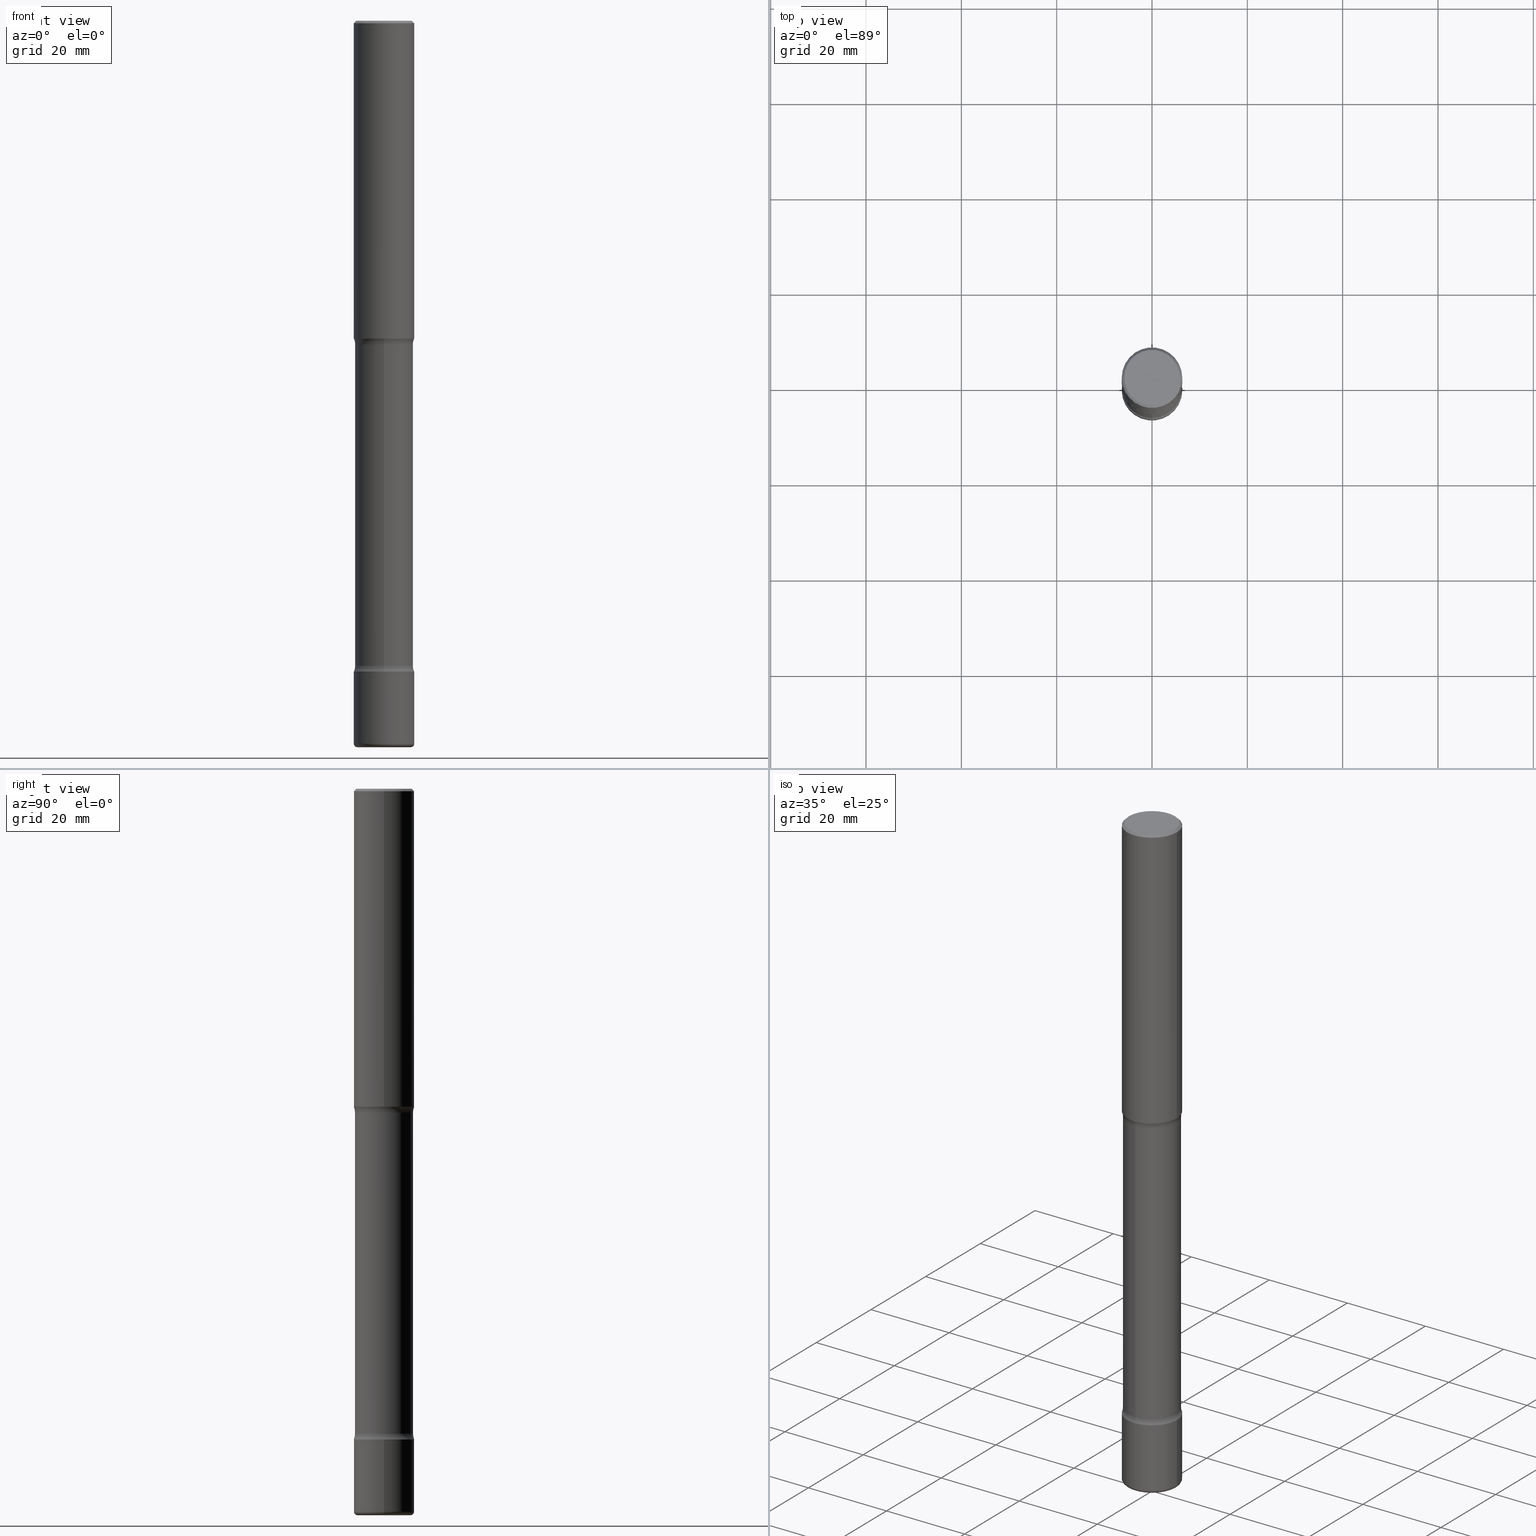
[diagram: canonical four-view strip — front | top / right | iso, engineering-drawing reading convention]
A machine part, canonical four-view strip (front | top / right | iso — engineering-drawing reading convention). The complete STEP part file that produces these views, byte-faithful:
ISO-10303-21;
HEADER;
FILE_DESCRIPTION (( 'STEP AP203' ),
    '1' );
FILE_NAME ('33553.STEP',
    '2024-03-01T22:48:00',
    ( '' ),
    ( '' ),
    'SwSTEP 2.0',
    'SolidWorks 2023',
    '' );
FILE_SCHEMA (( 'CONFIG_CONTROL_DESIGN' ));
ENDSEC;

DATA;
#1 = PERSON_AND_ORGANIZATION_ROLE ( 'creator' ) ;
#2 = CARTESIAN_POINT ( 'NONE',  ( 6.419355616235984688E-29, -9.165138514463258190E-15, -2.625000000000000444 ) ) ;
#3 = DIRECTION ( 'NONE',  ( -1.000000000000000000, 6.982962677686265922E-15, -4.876176775795935793E-29 ) ) ;
#4 = CARTESIAN_POINT ( 'NONE',  ( -0.2500000000000001110, 1.675911042644704760E-15, -0.02000000000000000042 ) ) ;
#5 = CARTESIAN_POINT ( 'NONE',  ( 6.419355616235984688E-29, -9.165138514463258190E-15, -2.625000000000000444 ) ) ;
#6 = DATE_TIME_ROLE ( 'classification_date' ) ;
#7 = VERTEX_POINT ( 'NONE', #434 ) ;
#8 = AXIS2_PLACEMENT_3D ( 'NONE', #16, #232, #534 ) ;
#9 = LINE ( 'NONE', #12, #491 ) ;
#10 = VERTEX_POINT ( 'NONE', #437 ) ;
#11 = CALENDAR_DATE ( 2024, 1, 3 ) ;
#12 = CARTESIAN_POINT ( 'NONE',  ( -0.2500000000000001110, 1.675911042644704760E-15, -0.02000000000000000042 ) ) ;
#13 = VERTEX_POINT ( 'NONE', #4 ) ;
#14 = MANIFOLD_SOLID_BREP ( 'Body-Move/Copy2[4]', #48 ) ;
#15 = EDGE_CURVE ( 'NONE', #108, #546, #316, .T. ) ;
#16 = CARTESIAN_POINT ( 'NONE',  ( 1.314439483324511145E-28, -1.876671219628190963E-14, -5.375000000000000888 ) ) ;
#17 = ORIENTED_EDGE ( 'NONE', *, *, #213, .F. ) ;
#18 = CLOSED_SHELL ( 'NONE', ( #496, #78, #240, #500, #498, #77 ) ) ;
#19 = DIRECTION ( 'NONE',  ( 7.105427357601001859E-15, 1.000000000000000000, -3.491481338843145583E-15 ) ) ;
#20 = DIRECTION ( 'NONE',  ( -2.445468806185136597E-29, 3.491481338843145583E-15, 1.000000000000000000 ) ) ;
#21 = CC_DESIGN_PERSON_AND_ORGANIZATION_ASSIGNMENT ( #339, #519, ( #357 ) ) ;
#22 = AXIS2_PLACEMENT_3D ( 'NONE', #217, #129, #422 ) ;
#23 = ORIENTED_EDGE ( 'NONE', *, *, #538, .T. ) ;
#24 = CYLINDRICAL_SURFACE ( 'NONE', #426, 0.2500000000000002220 ) ;
#25 = EDGE_LOOP ( 'NONE', ( #445, #485, #103, #476 ) ) ;
#26 = CARTESIAN_POINT ( 'NONE',  ( 5.817801196841161723E-29, -1.036921037236620195E-14, -2.673989794855665458 ) ) ;
#27 = ADVANCED_FACE ( 'NONE', ( #57 ), #54, .F. ) ;
#28 = FACE_OUTER_BOUND ( 'NONE', #102, .T. ) ;
#29 = AXIS2_PLACEMENT_3D ( 'NONE', #253, #31, #211 ) ;
#30 = CYLINDRICAL_SURFACE ( 'NONE', #492, 0.2500000000000002220 ) ;
#31 = DIRECTION ( 'NONE',  ( -2.445468806185136597E-29, 3.491481338843145583E-15, 1.000000000000000000 ) ) ;
#32 = AXIS2_PLACEMENT_3D ( 'NONE', #335, #517, #472 ) ;
#33 = DIRECTION ( 'NONE',  ( 1.000000000000000000, -6.982962677686265922E-15, 4.876225828469305518E-29 ) ) ;
#34 = CARTESIAN_POINT ( 'NONE',  ( 1.467281283711081958E-28, -2.094888803305887271E-14, -6.000000000000000888 ) ) ;
#35 = DIRECTION ( 'NONE',  ( -2.445468806185136597E-29, 3.491481338843145583E-15, 1.000000000000000000 ) ) ;
#36 = EDGE_CURVE ( 'NONE', #135, #229, #136, .T. ) ;
#37 = CARTESIAN_POINT ( 'NONE',  ( 5.684914501872502754E-29, -1.021689999202400017E-14, -2.625000000000000444 ) ) ;
#38 = AXIS2_PLACEMENT_3D ( 'NONE', #371, #550, #72 ) ;
#39 = CARTESIAN_POINT ( 'NONE',  ( 1.459944877292526719E-28, -2.084414359289358249E-14, -5.970000000000000639 ) ) ;
#40 = AXIS2_PLACEMENT_3D ( 'NONE', #547, #289, #33 ) ;
#41 = DIRECTION ( 'NONE',  ( -2.445468806185136597E-29, 3.491481338843145583E-15, 1.000000000000000000 ) ) ;
#42 = PRODUCT_DEFINITION_FORMATION_WITH_SPECIFIED_SOURCE ( 'ANY', '', #357, .NOT_KNOWN. ) ;
#43 = ADVANCED_FACE ( 'NONE', ( #231 ), #125, .F. ) ;
#44 = CARTESIAN_POINT ( 'NONE',  ( 1.459944877292526719E-28, -2.084414359289358249E-14, -5.970000000000000639 ) ) ;
#45 = ORIENTED_EDGE ( 'NONE', *, *, #440, .F. ) ;
#46 = DIRECTION ( 'NONE',  ( 1.000000000000000000, -6.860497997771530774E-15, 4.845482648085820023E-29 ) ) ;
#47 = VERTEX_POINT ( 'NONE', #191 ) ;
#48 = CLOSED_SHELL ( 'NONE', ( #312, #474, #264, #43, #325, #366, #429, #84 ) ) ;
#49 = PERSON_AND_ORGANIZATION_ROLE ( 'creator' ) ;
#50 = ORIENTED_EDGE ( 'NONE', *, *, #177, .T. ) ;
#51 = UNCERTAINTY_MEASURE_WITH_UNIT (LENGTH_MEASURE( 1.000000000000000082E-05 ), #86, 'distance_accuracy_value', 'NONE');
#52 = ADVANCED_BREP_SHAPE_REPRESENTATION ( '33553', ( #557, #365, #14, #32 ), #374 ) ;
#53 = LOCAL_TIME ( 17, 48, 0.000000000000000000, #96 ) ;
#54 = PLANE ( 'NONE',  #172 ) ;
#55 = EDGE_CURVE ( 'NONE', #409, #13, #9, .T. ) ;
#56 = PERSON_AND_ORGANIZATION ( #548, #446 ) ;
#57 = FACE_OUTER_BOUND ( 'NONE', #503, .T. ) ;
#58 = CIRCLE ( 'NONE', #131, 0.2500000000000012768 ) ;
#59 = DIRECTION ( 'NONE',  ( 6.982962677686265922E-15, 1.000000000000000000, -3.109022619730148535E-15 ) ) ;
#60 = ORIENTED_EDGE ( 'NONE', *, *, #115, .T. ) ;
#61 = APPROVAL_PERSON_ORGANIZATION ( #387, #406, #142 ) ;
#62 = CARTESIAN_POINT ( 'NONE',  ( 4.890937612370273159E-31, -6.982962677686291609E-17, -0.02000000000000000042 ) ) ;
#63 = ORIENTED_EDGE ( 'NONE', *, *, #222, .T. ) ;
#64 = DIRECTION ( 'NONE',  ( -1.000000000000000000, 6.982962677686265922E-15, -4.883557194083112340E-29 ) ) ;
#65 = CYLINDRICAL_SURFACE ( 'NONE', #254, 0.2500000000000002220 ) ;
#66 = EDGE_LOOP ( 'NONE', ( #193, #400, #196, #499 ) ) ;
#67 = CIRCLE ( 'NONE', #386, 0.2500000000000002220 ) ;
#68 = FACE_OUTER_BOUND ( 'NONE', #356, .T. ) ;
#69 = CARTESIAN_POINT ( 'NONE',  ( 1.302459181810417411E-28, -1.859566524174960707E-14, -5.326010205144336318 ) ) ;
#70 = CIRCLE ( 'NONE', #272, 0.1250000000000001110 ) ;
#71 = ORIENTED_EDGE ( 'NONE', *, *, #558, .T. ) ;
#72 = DIRECTION ( 'NONE',  ( 1.000000000000000000, -6.982962677686265922E-15, 4.883557194083112340E-29 ) ) ;
#73 = DIRECTION ( 'NONE',  ( -2.445468806185136877E-29, 3.491481338843145188E-15, 1.000000000000000000 ) ) ;
#74 = DIRECTION ( 'NONE',  ( 2.438088387897960049E-29, -3.491481338843145188E-15, -1.000000000000000000 ) ) ;
#75 = CARTESIAN_POINT ( 'NONE',  ( -0.2200000000000003897, -1.922674038393999147E-14, -6.000000000000000888 ) ) ;
#76 = DIRECTION ( 'NONE',  ( -1.000000000000000000, 6.982962677686265922E-15, -4.876176775795935793E-29 ) ) ;
#77 = ADVANCED_FACE ( 'NONE', ( #332 ), #248, .F. ) ;
#78 = ADVANCED_FACE ( 'NONE', ( #292 ), #414, .T. ) ;
#79 = CARTESIAN_POINT ( 'NONE',  ( 5.684914501872502754E-29, -1.021689999202400017E-14, -2.625000000000000444 ) ) ;
#80 = CIRCLE ( 'NONE', #505, 0.1250000000000001110 ) ;
#81 = AXIS2_PLACEMENT_3D ( 'NONE', #323, #287, #160 ) ;
#82 = CARTESIAN_POINT ( 'NONE',  ( 5.817801196841161723E-29, -1.036921037236620195E-14, -2.673989794855665458 ) ) ;
#83 = APPROVAL ( #433, 'UNSPECIFIED' ) ;
#84 = ADVANCED_FACE ( 'NONE', ( #28 ), #123, .T. ) ;
#85 = LOCAL_TIME ( 17, 48, 0.000000000000000000, #307 ) ;
#86 =( CONVERSION_BASED_UNIT ( 'INCH', #88 ) LENGTH_UNIT ( ) NAMED_UNIT ( #420 ) );
#87 = CARTESIAN_POINT ( 'NONE',  ( -0.2500000000000002220, 1.776356839400252042E-15, -1.229733772563727566E-29 ) ) ;
#88 = LENGTH_MEASURE_WITH_UNIT ( LENGTH_MEASURE( 0.02539999999999999897 ), #382 );
#89 = CIRCLE ( 'NONE', #302, 0.1250000000000001110 ) ;
#90 = DIRECTION ( 'NONE',  ( -2.445468806185136597E-29, 3.491481338843145583E-15, 1.000000000000000000 ) ) ;
#91 =( NAMED_UNIT ( * ) PLANE_ANGLE_UNIT ( ) SI_UNIT ( $, .RADIAN. ) );
#92 = CARTESIAN_POINT ( 'NONE',  ( 1.675911042644855432E-15, 0.2399999999999797573, -6.000000000000001776 ) ) ;
#93 = PERSON_AND_ORGANIZATION ( #548, #446 ) ;
#94 = ORIENTED_EDGE ( 'NONE', *, *, #416, .F. ) ;
#95 = EDGE_LOOP ( 'NONE', ( #170, #273, #542, #353 ) ) ;
#96 = COORDINATED_UNIVERSAL_TIME_OFFSET ( 5, 0, .BEHIND. ) ;
#97 = ORIENTED_EDGE ( 'NONE', *, *, #554, .T. ) ;
#98 = AXIS2_PLACEMENT_3D ( 'NONE', #34, #513, #128 ) ;
#99 = ADVANCED_FACE ( 'NONE', ( #296 ), #162, .F. ) ;
#100 = EDGE_CURVE ( 'NONE', #229, #13, #478, .T. ) ;
#101 = DATE_AND_TIME ( #484, #305 ) ;
#102 = EDGE_LOOP ( 'NONE', ( #106, #226, #224, #94 ) ) ;
#103 = ORIENTED_EDGE ( 'NONE', *, *, #346, .T. ) ;
#104 = EDGE_LOOP ( 'NONE', ( #405, #349 ) ) ;
#105 = PLANE ( 'NONE',  #359 ) ;
#106 = ORIENTED_EDGE ( 'NONE', *, *, #531, .F. ) ;
#107 = CYLINDRICAL_SURFACE ( 'NONE', #140, 0.2400000000000004352 ) ;
#108 = VERTEX_POINT ( 'NONE', #375 ) ;
#109 = AXIS2_PLACEMENT_3D ( 'NONE', #333, #428, #495 ) ;
#110 = DIRECTION ( 'NONE',  ( 6.982962677686265922E-15, 1.000000000000000000, -4.553079989440430414E-15 ) ) ;
#111 = ORIENTED_EDGE ( 'NONE', *, *, #161, .T. ) ;
#112 = CARTESIAN_POINT ( 'NONE',  ( 1.314439483324511145E-28, -1.876671219628190963E-14, -5.375000000000000888 ) ) ;
#113 = DIRECTION ( 'NONE',  ( 1.000000000000000000, -6.982962677686266711E-15, 4.876176775795935232E-29 ) ) ;
#114 = ORIENTED_EDGE ( 'NONE', *, *, #100, .T. ) ;
#115 = EDGE_CURVE ( 'NONE', #143, #108, #506, .T. ) ;
#116 = DIRECTION ( 'NONE',  ( 2.712538302317311845E-29, -3.109022619730148535E-15, -1.000000000000000000 ) ) ;
#117 = APPROVAL ( #525, 'UNSPECIFIED' ) ;
#118 = ORIENTED_EDGE ( 'NONE', *, *, #522, .F. ) ;
#119 = AXIS2_PLACEMENT_3D ( 'NONE', #185, #64, #239 ) ;
#120 = CARTESIAN_POINT ( 'NONE',  ( 1.314439483324511145E-28, -1.876671219628190963E-14, -5.375000000000000888 ) ) ;
#121 = LINE ( 'NONE', #87, #167 ) ;
#122 = DIRECTION ( 'NONE',  ( -2.445468806185136597E-29, 3.491481338843145583E-15, 1.000000000000000000 ) ) ;
#123 = CYLINDRICAL_SURFACE ( 'NONE', #207, 0.2400000000000004352 ) ;
#124 = CARTESIAN_POINT ( 'NONE',  ( 1.302459181810417411E-28, -1.859566524174960707E-14, -5.326010205144336318 ) ) ;
#125 = TOROIDAL_SURFACE ( 'NONE', #527, 0.3650000000000008793, 0.1250000000000001110 ) ;
#126 = CARTESIAN_POINT ( 'NONE',  ( -0.2500000000000002220, 1.776356839400252042E-15, -1.229733772563727566E-29 ) ) ;
#127 = DIRECTION ( 'NONE',  ( 1.000000000000000000, -6.982962677686273810E-15, 0.000000000000000000 ) ) ;
#128 = DIRECTION ( 'NONE',  ( 1.000000000000000000, -6.982962677686267499E-15, 0.000000000000000000 ) ) ;
#129 = DIRECTION ( 'NONE',  ( -2.445468806185136597E-29, 3.491481338843145583E-15, 1.000000000000000000 ) ) ;
#130 = CC_DESIGN_PERSON_AND_ORGANIZATION_ASSIGNMENT ( #310, #348, ( #354 ) ) ;
#131 = AXIS2_PLACEMENT_3D ( 'NONE', #79, #504, #364 ) ;
#132 = LINE ( 'NONE', #552, #541 ) ;
#133 = TOROIDAL_SURFACE ( 'NONE', #174, 0.3650000000000001577, 0.1250000000000000833 ) ;
#134 = APPLICATION_PROTOCOL_DEFINITION ( 'international standard', 'config_control_design', 1994, #411 ) ;
#135 = VERTEX_POINT ( 'NONE', #165 ) ;
#136 = LINE ( 'NONE', #388, #331 ) ;
#137 = CARTESIAN_POINT ( 'NONE',  ( 5.823793909594310239E-29, -1.036062846661966631E-14, -2.673989794855665458 ) ) ;
#138 = EDGE_CURVE ( 'NONE', #457, #235, #347, .T. ) ;
#139 = VERTEX_POINT ( 'NONE', #467 ) ;
#140 = AXIS2_PLACEMENT_3D ( 'NONE', #280, #192, #110 ) ;
#141 = CIRCLE ( 'NONE', #151, 0.2399999999999999911 ) ;
#142 = APPROVAL_ROLE ( '' ) ;
#143 = VERTEX_POINT ( 'NONE', #514 ) ;
#144 = COORDINATED_UNIVERSAL_TIME_OFFSET ( 5, 0, .BEHIND. ) ;
#145 = DIRECTION ( 'NONE',  ( -2.438088387897960049E-29, 3.491481338843145188E-15, 1.000000000000000000 ) ) ;
#146 = ORIENTED_EDGE ( 'NONE', *, *, #36, .T. ) ;
#147 = APPROVAL_ROLE ( '' ) ;
#148 = CIRCLE ( 'NONE', #119, 0.1250000000000001110 ) ;
#149 = ORIENTED_EDGE ( 'NONE', *, *, #454, .F. ) ;
#150 = TOROIDAL_SURFACE ( 'NONE', #423, 0.3650000000000001577, 0.1250000000000000833 ) ;
#151 = AXIS2_PLACEMENT_3D ( 'NONE', #376, #471, #334 ) ;
#152 = CARTESIAN_POINT ( 'NONE',  ( 2.548781377355618064E-15, 0.3649999999999815614, -5.326010205144338094 ) ) ;
#153 = ADVANCED_FACE ( 'NONE', ( #256 ), #410, .T. ) ;
#154 = ORIENTED_EDGE ( 'NONE', *, *, #15, .F. ) ;
#155 = DIRECTION ( 'NONE',  ( -1.000000000000000000, 6.982962677686267499E-15, 0.000000000000000000 ) ) ;
#156 = ORIENTED_EDGE ( 'NONE', *, *, #202, .T. ) ;
#157 = PRODUCT_DEFINITION_SHAPE ( 'NONE', 'NONE',  #479 ) ;
#158 = DIRECTION ( 'NONE',  ( -2.712538302317311845E-29, 3.109022619730148535E-15, 1.000000000000000000 ) ) ;
#159 = CIRCLE ( 'NONE', #98, 0.2200000000000003897 ) ;
#160 = DIRECTION ( 'NONE',  ( 1.000000000000000000, -6.982962677686273810E-15, 0.000000000000000000 ) ) ;
#161 = EDGE_CURVE ( 'NONE', #288, #430, #159, .T. ) ;
#162 = PLANE ( 'NONE',  #369 ) ;
#163 = DIRECTION ( 'NONE',  ( 1.000000000000000000, -6.982962677686265922E-15, 4.876225828469305518E-29 ) ) ;
#164 = PRODUCT_RELATED_PRODUCT_CATEGORY ( 'detail', '', ( #357 ) ) ;
#165 = CARTESIAN_POINT ( 'NONE',  ( 0.2300000000000001488, -1.681434332853599997E-15, 4.268512490111905999E-18 ) ) ;
#166 = DIRECTION ( 'NONE',  ( 6.982962677686265133E-15, 1.000000000000000000, -4.370956789862817205E-15 ) ) ;
#167 = VECTOR ( 'NONE', #258, 39.37007874015748143 ) ;
#168 = CARTESIAN_POINT ( 'NONE',  ( 0.000000000000000000, 0.000000000000000000, 0.000000000000000000 ) ) ;
#169 = FACE_OUTER_BOUND ( 'NONE', #399, .T. ) ;
#170 = ORIENTED_EDGE ( 'NONE', *, *, #427, .F. ) ;
#171 = CARTESIAN_POINT ( 'NONE',  ( 1.467281283711081958E-28, -2.094888803305887271E-14, -6.000000000000000888 ) ) ;
#172 = AXIS2_PLACEMENT_3D ( 'NONE', #2, #145, #314 ) ;
#173 = MECHANICAL_CONTEXT ( 'NONE', #455, 'mechanical' ) ;
#174 = AXIS2_PLACEMENT_3D ( 'NONE', #69, #250, #540 ) ;
#175 = COORDINATED_UNIVERSAL_TIME_OFFSET ( 5, 0, .BEHIND. ) ;
#176 = ORIENTED_EDGE ( 'NONE', *, *, #36, .F. ) ;
#177 = EDGE_CURVE ( 'NONE', #139, #13, #121, .T. ) ;
#178 = CARTESIAN_POINT ( 'NONE',  ( 1.314439483324511145E-28, -1.876671219628190963E-14, -5.375000000000000888 ) ) ;
#179 = CARTESIAN_POINT ( 'NONE',  ( 0.2500000000000000555, -2.258988426231514917E-14, -5.970000000000000639 ) ) ;
#180 = DATE_AND_TIME ( #11, #236 ) ;
#181 = ORIENTED_EDGE ( 'NONE', *, *, #299, .F. ) ;
#182 = AXIS2_PLACEMENT_3D ( 'NONE', #37, #216, #381 ) ;
#183 = CARTESIAN_POINT ( 'NONE',  ( -1.680822009453894668E-15, -0.2400000000000186151, -5.326010205144335430 ) ) ;
#184 = EDGE_LOOP ( 'NONE', ( #493, #60, #17, #291 ) ) ;
#185 = CARTESIAN_POINT ( 'NONE',  ( 2.548781377355551405E-15, 0.3649999999999904987, -2.673989794855666347 ) ) ;
#186 = TOROIDAL_SURFACE ( 'NONE', #560, 0.2200000000000002232, 0.02999999999999967970 ) ;
#187 = PERSON_AND_ORGANIZATION ( #548, #446 ) ;
#188 = VERTEX_POINT ( 'NONE', #424 ) ;
#189 = ORIENTED_EDGE ( 'NONE', *, *, #392, .T. ) ;
#190 = APPROVAL_DATE_TIME ( #532, #83 ) ;
#191 = CARTESIAN_POINT ( 'NONE',  ( 0.2500000000000003331, -1.091087918388482802E-14, -2.625000000000000444 ) ) ;
#192 = DIRECTION ( 'NONE',  ( 2.712538302317311845E-29, -3.109022619730148535E-15, -1.000000000000000000 ) ) ;
#193 = ORIENTED_EDGE ( 'NONE', *, *, #521, .F. ) ;
#194 = DIRECTION ( 'NONE',  ( 6.982962677686265922E-15, 1.000000000000000000, -3.109022619730148535E-15 ) ) ;
#195 = VECTOR ( 'NONE', #73, 39.37007874015748143 ) ;
#196 = ORIENTED_EDGE ( 'NONE', *, *, #219, .T. ) ;
#197 = DIRECTION ( 'NONE',  ( -1.000000000000000000, 7.105427357600937172E-15, 0.000000000000000000 ) ) ;
#198 = CIRCLE ( 'NONE', #22, 0.2200000000000003897 ) ;
#199 = EDGE_CURVE ( 'NONE', #10, #188, #298, .T. ) ;
#200 = CARTESIAN_POINT ( 'NONE',  ( 4.890937612370273159E-31, -6.982962677686291609E-17, -0.02000000000000000042 ) ) ;
#201 = VERTEX_POINT ( 'NONE', #555 ) ;
#202 = EDGE_CURVE ( 'NONE', #13, #229, #510, .T. ) ;
#203 = FACE_OUTER_BOUND ( 'NONE', #184, .T. ) ;
#204 = ORIENTED_EDGE ( 'NONE', *, *, #515, .F. ) ;
#205 = DIRECTION ( 'NONE',  ( 1.000000000000000000, -6.982962677686267499E-15, 4.876176775795936353E-29 ) ) ;
#206 = DIRECTION ( 'NONE',  ( 2.712538302317311845E-29, -3.109022619730148535E-15, -1.000000000000000000 ) ) ;
#207 = AXIS2_PLACEMENT_3D ( 'NONE', #208, #324, #458 ) ;
#208 = CARTESIAN_POINT ( 'NONE',  ( 1.483973127219342911E-28, -2.070985133361325197E-14, -6.000000000000000888 ) ) ;
#209 = DIRECTION ( 'NONE',  ( -2.445468806185136597E-29, 3.491481338843145583E-15, 1.000000000000000000 ) ) ;
#210 = CC_DESIGN_APPROVAL ( #83, ( #479 ) ) ;
#211 = DIRECTION ( 'NONE',  ( 1.000000000000000000, -6.982962677686267499E-15, 0.000000000000000000 ) ) ;
#212 = FACE_OUTER_BOUND ( 'NONE', #473, .T. ) ;
#213 = EDGE_CURVE ( 'NONE', #546, #108, #67, .T. ) ;
#214 = CARTESIAN_POINT ( 'NONE',  ( -2.504081769186556940E-15, -0.3650000000000112599, -2.673989794855664126 ) ) ;
#215 = AXIS2_PLACEMENT_3D ( 'NONE', #178, #308, #435 ) ;
#216 = DIRECTION ( 'NONE',  ( 2.712538302317311845E-29, -3.109022619730148535E-15, -1.000000000000000000 ) ) ;
#217 = CARTESIAN_POINT ( 'NONE',  ( 1.467281283711081958E-28, -2.094888803305887271E-14, -6.000000000000000888 ) ) ;
#218 = CARTESIAN_POINT ( 'NONE',  ( 0.2200000000000002232, -2.238039538198456243E-14, -5.970000000000000639 ) ) ;
#219 = EDGE_CURVE ( 'NONE', #457, #188, #148, .T. ) ;
#220 = ORIENTED_EDGE ( 'NONE', *, *, #501, .F. ) ;
#221 = TOROIDAL_SURFACE ( 'NONE', #403, 0.3650000000000008793, 0.1250000000000001110 ) ;
#222 = EDGE_CURVE ( 'NONE', #430, #143, #490, .T. ) ;
#223 = SECURITY_CLASSIFICATION_LEVEL ( 'unclassified' ) ;
#224 = ORIENTED_EDGE ( 'NONE', *, *, #260, .T. ) ;
#225 = DATE_AND_TIME ( #481, #362 ) ;
#226 = ORIENTED_EDGE ( 'NONE', *, *, #427, .T. ) ;
#227 = DIRECTION ( 'NONE',  ( -1.000000000000000000, 6.982962677686267499E-15, 0.000000000000000000 ) ) ;
#228 = SHAPE_DEFINITION_REPRESENTATION ( #157, #52 ) ;
#229 = VERTEX_POINT ( 'NONE', #274 ) ;
#230 = ORIENTED_EDGE ( 'NONE', *, *, #416, .T. ) ;
#231 = FACE_OUTER_BOUND ( 'NONE', #66, .T. ) ;
#232 = DIRECTION ( 'NONE',  ( 2.712538302317311845E-29, -3.109022619730148535E-15, -1.000000000000000000 ) ) ;
#233 = ORIENTED_EDGE ( 'NONE', *, *, #115, .F. ) ;
#234 = ORIENTED_EDGE ( 'NONE', *, *, #55, .T. ) ;
#235 = VERTEX_POINT ( 'NONE', #452 ) ;
#236 = LOCAL_TIME ( 17, 48, 0.000000000000000000, #144 ) ;
#237 = DIRECTION ( 'NONE',  ( 2.712538302317311845E-29, -3.109022619730148535E-15, -1.000000000000000000 ) ) ;
#238 = ORIENTED_EDGE ( 'NONE', *, *, #392, .F. ) ;
#239 = DIRECTION ( 'NONE',  ( -6.982962677686264344E-15, -1.000000000000000000, 0.000000000000000000 ) ) ;
#240 = ADVANCED_FACE ( 'NONE', ( #68 ), #105, .T. ) ;
#241 = DIRECTION ( 'NONE',  ( 6.982962677686265922E-15, 1.000000000000000000, -3.109022619730148929E-15 ) ) ;
#242 = AXIS2_PLACEMENT_3D ( 'NONE', #168, #421, #205 ) ;
#243 = ORIENTED_EDGE ( 'NONE', *, *, #263, .T. ) ;
#244 = CIRCLE ( 'NONE', #512, 0.2500000000000003331 ) ;
#245 = CARTESIAN_POINT ( 'NONE',  ( 1.675911042644767869E-15, 0.2399999999999904710, -2.673989794855665902 ) ) ;
#246 = ORIENTED_EDGE ( 'NONE', *, *, #461, .F. ) ;
#247 = APPROVAL_PERSON_ORGANIZATION ( #93, #83, #147 ) ;
#248 = PLANE ( 'NONE',  #290 ) ;
#249 = CARTESIAN_POINT ( 'NONE',  ( 1.745740669421699206E-15, 0.2499999999999814315, -5.375000000000001776 ) ) ;
#250 = DIRECTION ( 'NONE',  ( 2.712538302317311845E-29, -3.109022619730148535E-15, -1.000000000000000000 ) ) ;
#251 = AXIS2_PLACEMENT_3D ( 'NONE', #82, #329, #509 ) ;
#252 = AXIS2_PLACEMENT_3D ( 'NONE', #402, #19, #197 ) ;
#253 = CARTESIAN_POINT ( 'NONE',  ( 4.890937612370273159E-31, -6.982962677686291609E-17, -0.02000000000000000042 ) ) ;
#254 = AXIS2_PLACEMENT_3D ( 'NONE', #265, #35, #470 ) ;
#255 = FACE_OUTER_BOUND ( 'NONE', #439, .T. ) ;
#256 = FACE_OUTER_BOUND ( 'NONE', #25, .T. ) ;
#257 = DIRECTION ( 'NONE',  ( 1.000000000000000000, -6.982962677686213068E-15, 0.000000000000000000 ) ) ;
#258 = DIRECTION ( 'NONE',  ( -2.445468806185136877E-29, 3.491481338843145188E-15, 1.000000000000000000 ) ) ;
#259 = CARTESIAN_POINT ( 'NONE',  ( 1.314439483324511145E-28, -1.876671219628190963E-14, -5.375000000000000888 ) ) ;
#260 = EDGE_CURVE ( 'NONE', #457, #201, #524, .T. ) ;
#261 = VECTOR ( 'NONE', #469, 39.37007874015748143 ) ;
#262 =( NAMED_UNIT ( * ) SI_UNIT ( $, .STERADIAN. ) SOLID_ANGLE_UNIT ( ) );
#263 = EDGE_CURVE ( 'NONE', #341, #546, #380, .T. ) ;
#264 = ADVANCED_FACE ( 'NONE', ( #355 ), #221, .F. ) ;
#265 = CARTESIAN_POINT ( 'NONE',  ( 0.000000000000000000, 0.000000000000000000, 0.000000000000000000 ) ) ;
#266 = EDGE_LOOP ( 'NONE', ( #394, #189, #230, #398 ) ) ;
#267 = VERTEX_POINT ( 'NONE', #183 ) ;
#268 = CLOSED_SHELL ( 'NONE', ( #462, #284, #389, #99, #27, #153 ) ) ;
#269 = ORIENTED_EDGE ( 'NONE', *, *, #15, .T. ) ;
#270 = CIRCLE ( 'NONE', #370, 0.2400000000000008515 ) ;
#271 = DIRECTION ( 'NONE',  ( 6.982962677686265922E-15, 1.000000000000000000, -3.109022619730148535E-15 ) ) ;
#272 = AXIS2_PLACEMENT_3D ( 'NONE', #214, #46, #300 ) ;
#273 = ORIENTED_EDGE ( 'NONE', *, *, #521, .T. ) ;
#274 = CARTESIAN_POINT ( 'NONE',  ( 0.2500000000000001110, -1.784954126219746583E-15, -0.02000000000000000042 ) ) ;
#275 = DATE_TIME_ROLE ( 'creation_date' ) ;
#276 = EDGE_LOOP ( 'NONE', ( #537, #269 ) ) ;
#277 = FACE_OUTER_BOUND ( 'NONE', #489, .T. ) ;
#278 = DIRECTION ( 'NONE',  ( 2.712538302317311845E-29, -3.109022619730148535E-15, -1.000000000000000000 ) ) ;
#279 = AXIS2_PLACEMENT_3D ( 'NONE', #321, #116, #318 ) ;
#280 = CARTESIAN_POINT ( 'NONE',  ( 1.483973127219342911E-28, -2.070985133361325197E-14, -6.000000000000000888 ) ) ;
#281 = ORIENTED_EDGE ( 'NONE', *, *, #417, .F. ) ;
#282 = DATE_AND_TIME ( #340, #85 ) ;
#283 = DIRECTION ( 'NONE',  ( 2.712538302317311845E-29, -3.109022619730148535E-15, -1.000000000000000000 ) ) ;
#284 = ADVANCED_FACE ( 'NONE', ( #277 ), #379, .T. ) ;
#285 = ORIENTED_EDGE ( 'NONE', *, *, #222, .F. ) ;
#286 = DIRECTION ( 'NONE',  ( 1.000000000000000000, -6.982962677686272233E-15, 0.000000000000000000 ) ) ;
#287 = DIRECTION ( 'NONE',  ( -2.445468806185136597E-29, 3.491481338843145583E-15, 1.000000000000000000 ) ) ;
#288 = VERTEX_POINT ( 'NONE', #438 ) ;
#289 = DIRECTION ( 'NONE',  ( -2.445468806185136597E-29, 3.491481338843145583E-15, 1.000000000000000000 ) ) ;
#290 = AXIS2_PLACEMENT_3D ( 'NONE', #327, #74, #76 ) ;
#291 = ORIENTED_EDGE ( 'NONE', *, *, #263, .F. ) ;
#292 = FACE_OUTER_BOUND ( 'NONE', #526, .T. ) ;
#293 = AXIS2_PLACEMENT_3D ( 'NONE', #39, #559, #127 ) ;
#294 = DIRECTION ( 'NONE',  ( 2.445468806185136597E-29, -3.491481338843145583E-15, -1.000000000000000000 ) ) ;
#295 = FACE_OUTER_BOUND ( 'NONE', #266, .T. ) ;
#296 = FACE_OUTER_BOUND ( 'NONE', #104, .T. ) ;
#297 = PLANE ( 'NONE',  #453 ) ;
#298 = CIRCLE ( 'NONE', #182, 0.2500000000000012768 ) ;
#299 = EDGE_CURVE ( 'NONE', #395, #7, #518, .T. ) ;
#300 = DIRECTION ( 'NONE',  ( 6.860497997771531562E-15, 1.000000000000000000, 0.000000000000000000 ) ) ;
#301 = APPLICATION_PROTOCOL_DEFINITION ( 'international standard', 'config_control_design', 1994, #455 ) ;
#302 = AXIS2_PLACEMENT_3D ( 'NONE', #368, #328, #418 ) ;
#303 = DIRECTION ( 'NONE',  ( 2.712538302317311845E-29, -3.109022619730148535E-15, -1.000000000000000000 ) ) ;
#304 = ORIENTED_EDGE ( 'NONE', *, *, #417, .T. ) ;
#305 = LOCAL_TIME ( 17, 48, 0.000000000000000000, #175 ) ;
#306 = ORIENTED_EDGE ( 'NONE', *, *, #554, .F. ) ;
#307 = COORDINATED_UNIVERSAL_TIME_OFFSET ( 5, 0, .BEHIND. ) ;
#308 = DIRECTION ( 'NONE',  ( -2.445468806185136597E-29, 3.491481338843145583E-15, 1.000000000000000000 ) ) ;
#309 = DIRECTION ( 'NONE',  ( 2.712538302317311845E-29, -3.109022619730148535E-15, -1.000000000000000000 ) ) ;
#310 = PERSON_AND_ORGANIZATION ( #548, #446 ) ;
#311 = ORIENTED_EDGE ( 'NONE', *, *, #55, .F. ) ;
#312 = ADVANCED_FACE ( 'NONE', ( #488 ), #107, .T. ) ;
#313 = ORIENTED_EDGE ( 'NONE', *, *, #538, .F. ) ;
#314 = DIRECTION ( 'NONE',  ( 1.000000000000000000, -6.982962677686265922E-15, 4.876176775795935793E-29 ) ) ;
#315 = EDGE_LOOP ( 'NONE', ( #363, #360, #220, #322 ) ) ;
#316 = CIRCLE ( 'NONE', #215, 0.2500000000000002220 ) ;
#317 = ORIENTED_EDGE ( 'NONE', *, *, #100, .F. ) ;
#318 = DIRECTION ( 'NONE',  ( 6.982962677686265922E-15, 1.000000000000000000, -4.553079989440439092E-15 ) ) ;
#319 = CC_DESIGN_SECURITY_CLASSIFICATION ( #354, ( #42 ) ) ;
#320 = EDGE_LOOP ( 'NONE', ( #523, #71 ) ) ;
#321 = CARTESIAN_POINT ( 'NONE',  ( 1.301150813827645584E-28, -1.861440181593971258E-14, -5.326010205144336318 ) ) ;
#322 = ORIENTED_EDGE ( 'NONE', *, *, #260, .F. ) ;
#323 = CARTESIAN_POINT ( 'NONE',  ( 1.459944877292526719E-28, -2.084414359289358249E-14, -5.970000000000000639 ) ) ;
#324 = DIRECTION ( 'NONE',  ( 2.712538302317311845E-29, -3.109022619730148535E-15, -1.000000000000000000 ) ) ;
#325 = ADVANCED_FACE ( 'NONE', ( #391 ), #448, .F. ) ;
#326 = CARTESIAN_POINT ( 'NONE',  ( 0.000000000000000000, 0.000000000000000000, 0.000000000000000000 ) ) ;
#327 = CARTESIAN_POINT ( 'NONE',  ( 1.314439483324511145E-28, -1.876671219628190963E-14, -5.375000000000000888 ) ) ;
#328 = DIRECTION ( 'NONE',  ( 1.000000000000000000, -6.860497997771530774E-15, 4.845482648085820023E-29 ) ) ;
#329 = DIRECTION ( 'NONE',  ( 2.712538302317311845E-29, -3.109022619730148535E-15, -1.000000000000000000 ) ) ;
#330 = DIRECTION ( 'NONE',  ( 1.000000000000000000, -6.982962677686265922E-15, 4.883557194083112340E-29 ) ) ;
#331 = VECTOR ( 'NONE', #344, 39.37007874015748143 ) ;
#332 = FACE_OUTER_BOUND ( 'NONE', #276, .T. ) ;
#333 = CARTESIAN_POINT ( 'NONE',  ( 4.890937612370273159E-31, -6.982962677686291609E-17, -0.02000000000000000042 ) ) ;
#334 = DIRECTION ( 'NONE',  ( 6.982962677686265922E-15, 1.000000000000000000, -4.553079989440439092E-15 ) ) ;
#335 = CARTESIAN_POINT ( 'NONE',  ( 0.000000000000000000, 0.000000000000000000, 0.000000000000000000 ) ) ;
#336 = DIRECTION ( 'NONE',  ( 2.438088387897960049E-29, -3.491481338843145188E-15, -1.000000000000000000 ) ) ;
#337 = CIRCLE ( 'NONE', #338, 0.2500000000000003331 ) ;
#338 = AXIS2_PLACEMENT_3D ( 'NONE', #412, #508, #372 ) ;
#339 = PERSON_AND_ORGANIZATION ( #548, #446 ) ;
#340 = CALENDAR_DATE ( 2024, 1, 3 ) ;
#341 = VERTEX_POINT ( 'NONE', #179 ) ;
#342 = CC_DESIGN_DATE_AND_TIME_ASSIGNMENT ( #225, #6, ( #354 ) ) ;
#343 = PERSON_AND_ORGANIZATION ( #548, #446 ) ;
#344 = DIRECTION ( 'NONE',  ( 0.7071067811865472397, -7.319954787623254468E-15, -0.7071067811865477948 ) ) ;
#345 = LINE ( 'NONE', #502, #195 ) ;
#346 = EDGE_CURVE ( 'NONE', #47, #229, #345, .T. ) ;
#347 = CIRCLE ( 'NONE', #251, 0.2400000000000008515 ) ;
#348 = PERSON_AND_ORGANIZATION_ROLE ( 'classification_officer' ) ;
#349 = ORIENTED_EDGE ( 'NONE', *, *, #440, .T. ) ;
#350 = DIRECTION ( 'NONE',  ( 2.445468806185136597E-29, -3.491481338843145583E-15, -1.000000000000000000 ) ) ;
#351 = CIRCLE ( 'NONE', #81, 0.2500000000000001665 ) ;
#352 = PERSON_AND_ORGANIZATION_ROLE ( 'design_supplier' ) ;
#353 = ORIENTED_EDGE ( 'NONE', *, *, #219, .F. ) ;
#354 = SECURITY_CLASSIFICATION ( '', '', #223 ) ;
#355 = FACE_OUTER_BOUND ( 'NONE', #95, .T. ) ;
#356 = EDGE_LOOP ( 'NONE', ( #443, #313 ) ) ;
#357 = PRODUCT ( '33553', '33553', '', ( #173 ) ) ;
#358 = ORIENTED_EDGE ( 'NONE', *, *, #494, .T. ) ;
#359 = AXIS2_PLACEMENT_3D ( 'NONE', #171, #336, #3 ) ;
#360 = ORIENTED_EDGE ( 'NONE', *, *, #531, .T. ) ;
#361 = DIRECTION ( 'NONE',  ( 6.982962677686265922E-15, 1.000000000000000000, -2.276539994720211263E-15 ) ) ;
#362 = LOCAL_TIME ( 17, 48, 0.000000000000000000, #529 ) ;
#363 = ORIENTED_EDGE ( 'NONE', *, *, #138, .T. ) ;
#364 = DIRECTION ( 'NONE',  ( 6.982962677686265133E-15, 1.000000000000000000, -2.185478394931399531E-15 ) ) ;
#365 = MANIFOLD_SOLID_BREP ( 'Body-Move/Copy2[2]', #268 ) ;
#366 = ADVANCED_FACE ( 'NONE', ( #507 ), #297, .F. ) ;
#367 = CARTESIAN_POINT ( 'NONE',  ( 1.606081415867842251E-15, 0.2300000000000001488, -8.009064516888738702E-16 ) ) ;
#368 = CARTESIAN_POINT ( 'NONE',  ( -2.504081769186479631E-15, -0.3650000000000186984, -5.326010205144335430 ) ) ;
#369 = AXIS2_PLACEMENT_3D ( 'NONE', #367, #377, #463 ) ;
#370 = AXIS2_PLACEMENT_3D ( 'NONE', #26, #408, #361 ) ;
#371 = CARTESIAN_POINT ( 'NONE',  ( 1.459944877292526719E-28, -2.084414359289358249E-14, -5.970000000000000639 ) ) ;
#372 = DIRECTION ( 'NONE',  ( 1.000000000000000000, -6.982962677686269077E-15, 0.000000000000000000 ) ) ;
#373 = CARTESIAN_POINT ( 'NONE',  ( 0.2500000000000002220, -1.745740669421568255E-15, 1.219044193948984929E-29 ) ) ;
#374 =( GEOMETRIC_REPRESENTATION_CONTEXT ( 3 ) GLOBAL_UNCERTAINTY_ASSIGNED_CONTEXT ( ( #51 ) ) GLOBAL_UNIT_ASSIGNED_CONTEXT ( ( #86, #91, #262 ) ) REPRESENTATION_CONTEXT ( 'NONE', 'WORKASPACE' ) );
#375 = CARTESIAN_POINT ( 'NONE',  ( -0.2500000000000002220, -1.802907105518749402E-14, -5.375000000000000888 ) ) ;
#376 = CARTESIAN_POINT ( 'NONE',  ( 1.301150813827645584E-28, -1.861440181593971258E-14, -5.326010205144336318 ) ) ;
#377 = DIRECTION ( 'NONE',  ( 2.438088387897960049E-29, -3.491481338843145188E-15, -1.000000000000000000 ) ) ;
#378 = CARTESIAN_POINT ( 'NONE',  ( 6.419355616235984688E-29, -9.165138514463258190E-15, -2.625000000000000444 ) ) ;
#379 = CONICAL_SURFACE ( 'NONE', #539, 0.2500000000000001110, 0.7853981633974479459 ) ;
#380 = LINE ( 'NONE', #373, #464 ) ;
#381 = DIRECTION ( 'NONE',  ( 6.982962677686265133E-15, 1.000000000000000000, -2.185478394931399531E-15 ) ) ;
#382 =( LENGTH_UNIT ( ) NAMED_UNIT ( * ) SI_UNIT ( $, .METRE. ) );
#383 = CIRCLE ( 'NONE', #419, 0.2500000000000002220 ) ;
#384 = CARTESIAN_POINT ( 'NONE',  ( 0.2500000000000002220, -2.051245286570347946E-14, -5.375000000000000888 ) ) ;
#385 = DIRECTION ( 'NONE',  ( 1.000000000000000000, -6.982962677686269077E-15, 0.000000000000000000 ) ) ;
#386 = AXIS2_PLACEMENT_3D ( 'NONE', #112, #528, #286 ) ;
#387 = PERSON_AND_ORGANIZATION ( #548, #446 ) ;
#388 = CARTESIAN_POINT ( 'NONE',  ( 0.2500000000000001110, -1.784954126219746583E-15, -0.02000000000000000042 ) ) ;
#389 = ADVANCED_FACE ( 'NONE', ( #545 ), #396, .T. ) ;
#390 = EDGE_LOOP ( 'NONE', ( #233, #530, #243, #154 ) ) ;
#391 = FACE_OUTER_BOUND ( 'NONE', #482, .T. ) ;
#392 = EDGE_CURVE ( 'NONE', #7, #267, #89, .T. ) ;
#393 = APPROVAL_DATE_TIME ( #101, #406 ) ;
#394 = ORIENTED_EDGE ( 'NONE', *, *, #558, .F. ) ;
#395 = VERTEX_POINT ( 'NONE', #249 ) ;
#396 = CONICAL_SURFACE ( 'NONE', #549, 0.2500000000000001110, 0.7853981633974479459 ) ;
#397 = APPROVAL_ROLE ( '' ) ;
#398 = ORIENTED_EDGE ( 'NONE', *, *, #494, .F. ) ;
#399 = EDGE_LOOP ( 'NONE', ( #285, #23, #97, #149 ) ) ;
#400 = ORIENTED_EDGE ( 'NONE', *, *, #138, .F. ) ;
#401 = EDGE_CURVE ( 'NONE', #188, #10, #58, .T. ) ;
#402 = CARTESIAN_POINT ( 'NONE',  ( -0.2200000000000002232, -1.928094957422135754E-14, -5.970000000000000639 ) ) ;
#403 = AXIS2_PLACEMENT_3D ( 'NONE', #137, #283, #271 ) ;
#404 = CARTESIAN_POINT ( 'NONE',  ( -1.043851414335219820E-46, 1.490343170380447200E-32, 4.268512490100411279E-18 ) ) ;
#405 = ORIENTED_EDGE ( 'NONE', *, *, #461, .T. ) ;
#406 = APPROVAL ( #442, 'UNSPECIFIED' ) ;
#407 = CIRCLE ( 'NONE', #480, 0.02999999999999967970 ) ;
#408 = DIRECTION ( 'NONE',  ( 2.712538302317311845E-29, -3.109022619730148535E-15, -1.000000000000000000 ) ) ;
#409 = VERTEX_POINT ( 'NONE', #460 ) ;
#410 = CYLINDRICAL_SURFACE ( 'NONE', #242, 0.2500000000000002220 ) ;
#411 = APPLICATION_CONTEXT ( 'configuration controlled 3d designs of mechanical parts and assemblies' ) ;
#412 = CARTESIAN_POINT ( 'NONE',  ( 6.419355616235984688E-29, -9.165138514463258190E-15, -2.625000000000000444 ) ) ;
#413 = DIRECTION ( 'NONE',  ( -1.000000000000000000, 6.982962677686265922E-15, -4.883557194083112340E-29 ) ) ;
#414 = TOROIDAL_SURFACE ( 'NONE', #38, 0.2200000000000002232, 0.02999999999999967970 ) ;
#415 = AXIS2_PLACEMENT_3D ( 'NONE', #404, #122, #163 ) ;
#416 = EDGE_CURVE ( 'NONE', #267, #201, #441, .T. ) ;
#417 = EDGE_CURVE ( 'NONE', #47, #139, #337, .T. ) ;
#418 = DIRECTION ( 'NONE',  ( 6.860497997771529196E-15, 1.000000000000000000, 0.000000000000000000 ) ) ;
#419 = AXIS2_PLACEMENT_3D ( 'NONE', #259, #303, #166 ) ;
#420 = DIMENSIONAL_EXPONENTS ( 1.000000000000000000, 0.000000000000000000, 0.000000000000000000, 0.000000000000000000, 0.000000000000000000, 0.000000000000000000, 0.000000000000000000 ) ;
#421 = DIRECTION ( 'NONE',  ( -2.445468806185136597E-29, 3.491481338843145583E-15, 1.000000000000000000 ) ) ;
#422 = DIRECTION ( 'NONE',  ( 1.000000000000000000, -6.982962677686267499E-15, 0.000000000000000000 ) ) ;
#423 = AXIS2_PLACEMENT_3D ( 'NONE', #124, #206, #241 ) ;
#424 = CARTESIAN_POINT ( 'NONE',  ( 1.745740669421632153E-15, 0.2499999999999910627, -2.625000000000000888 ) ) ;
#425 = VECTOR ( 'NONE', #309, 39.37007874015748143 ) ;
#426 = AXIS2_PLACEMENT_3D ( 'NONE', #326, #20, #551 ) ;
#427 = EDGE_CURVE ( 'NONE', #235, #457, #270, .T. ) ;
#428 = DIRECTION ( 'NONE',  ( -2.445468806185136597E-29, 3.491481338843145583E-15, 1.000000000000000000 ) ) ;
#429 = ADVANCED_FACE ( 'NONE', ( #255 ), #150, .F. ) ;
#430 = VERTEX_POINT ( 'NONE', #75 ) ;
#431 = AXIS2_PLACEMENT_3D ( 'NONE', #5, #237, #194 ) ;
#432 = CC_DESIGN_DATE_AND_TIME_ASSIGNMENT ( #180, #275, ( #479 ) ) ;
#433 = APPROVAL_STATUS ( 'not_yet_approved' ) ;
#434 = CARTESIAN_POINT ( 'NONE',  ( -1.715124499442752334E-15, -0.2500000000000189293, -5.374999999999999112 ) ) ;
#435 = DIRECTION ( 'NONE',  ( 1.000000000000000000, -6.982962677686272233E-15, 0.000000000000000000 ) ) ;
#436 = PERSON_AND_ORGANIZATION ( #548, #446 ) ;
#437 = CARTESIAN_POINT ( 'NONE',  ( -1.715124499442834967E-15, -0.2500000000000114908, -2.625000000000000000 ) ) ;
#438 = CARTESIAN_POINT ( 'NONE',  ( 0.2200000000000003897, -2.248513982214985580E-14, -6.000000000000000888 ) ) ;
#439 = EDGE_LOOP ( 'NONE', ( #238, #181, #358, #449 ) ) ;
#440 = EDGE_CURVE ( 'NONE', #135, #409, #459, .T. ) ;
#441 = CIRCLE ( 'NONE', #279, 0.2399999999999999911 ) ;
#442 = APPROVAL_STATUS ( 'not_yet_approved' ) ;
#443 = ORIENTED_EDGE ( 'NONE', *, *, #161, .F. ) ;
#444 = CIRCLE ( 'NONE', #415, 0.2300000000000001488 ) ;
#445 = ORIENTED_EDGE ( 'NONE', *, *, #177, .F. ) ;
#446 = ORGANIZATION ( 'UNSPECIFIED', 'UNSPECIFIED', '' ) ;
#447 = CALENDAR_DATE ( 2024, 1, 3 ) ;
#448 = PLANE ( 'NONE',  #431 ) ;
#449 = ORIENTED_EDGE ( 'NONE', *, *, #501, .T. ) ;
#450 = FACE_OUTER_BOUND ( 'NONE', #390, .T. ) ;
#451 = ORIENTED_EDGE ( 'NONE', *, *, #346, .F. ) ;
#452 = CARTESIAN_POINT ( 'NONE',  ( -1.680822009453975329E-15, -0.2400000000000112321, -2.673989794855665014 ) ) ;
#453 = AXIS2_PLACEMENT_3D ( 'NONE', #120, #158, #465 ) ;
#454 = EDGE_CURVE ( 'NONE', #143, #341, #351, .T. ) ;
#455 = APPLICATION_CONTEXT ( 'configuration controlled 3d designs of mechanical parts and assemblies' ) ;
#456 = DIRECTION ( 'NONE',  ( -6.982962677686264344E-15, -1.000000000000000000, 0.000000000000000000 ) ) ;
#457 = VERTEX_POINT ( 'NONE', #245 ) ;
#458 = DIRECTION ( 'NONE',  ( 6.982962677686265922E-15, 1.000000000000000000, -4.553079989440430414E-15 ) ) ;
#459 = CIRCLE ( 'NONE', #40, 0.2300000000000001488 ) ;
#460 = CARTESIAN_POINT ( 'NONE',  ( -0.2300000000000001488, 1.640996229256273703E-15, 4.268512490089056766E-18 ) ) ;
#461 = EDGE_CURVE ( 'NONE', #409, #135, #444, .T. ) ;
#462 = ADVANCED_FACE ( 'NONE', ( #212 ), #24, .T. ) ;
#463 = DIRECTION ( 'NONE',  ( -1.000000000000000000, 6.982962677686265922E-15, -4.876176775795935793E-29 ) ) ;
#464 = VECTOR ( 'NONE', #477, 39.37007874015748143 ) ;
#465 = DIRECTION ( 'NONE',  ( -6.982962677686265922E-15, -1.000000000000000000, 3.109022619730148535E-15 ) ) ;
#466 = CIRCLE ( 'NONE', #293, 0.2500000000000001665 ) ;
#467 = CARTESIAN_POINT ( 'NONE',  ( -0.2500000000000003331, -2.841127231219806335E-15, -2.625000000000000444 ) ) ;
#468 = DIRECTION ( 'NONE',  ( -0.7071067811865472397, 2.468850131082253905E-15, -0.7071067811865477948 ) ) ;
#469 = DIRECTION ( 'NONE',  ( -2.445468806185136877E-29, 3.491481338843145188E-15, 1.000000000000000000 ) ) ;
#470 = DIRECTION ( 'NONE',  ( 1.000000000000000000, -6.982962677686266711E-15, 4.876176775795935232E-29 ) ) ;
#471 = DIRECTION ( 'NONE',  ( 2.712538302317311845E-29, -3.109022619730148535E-15, -1.000000000000000000 ) ) ;
#472 = DIRECTION ( 'NONE',  ( 1.000000000000000000, 0.000000000000000000, 0.000000000000000000 ) ) ;
#473 = EDGE_LOOP ( 'NONE', ( #304, #50, #317, #451 ) ) ;
#474 = ADVANCED_FACE ( 'NONE', ( #295 ), #133, .F. ) ;
#475 = CC_DESIGN_PERSON_AND_ORGANIZATION_ASSIGNMENT ( #187, #352, ( #42 ) ) ;
#476 = ORIENTED_EDGE ( 'NONE', *, *, #202, .F. ) ;
#477 = DIRECTION ( 'NONE',  ( -2.445468806185136877E-29, 3.491481338843145188E-15, 1.000000000000000000 ) ) ;
#478 = CIRCLE ( 'NONE', #29, 0.2500000000000001110 ) ;
#479 = PRODUCT_DEFINITION ( 'UNKNOWN', '', #42, #486 ) ;
#480 = AXIS2_PLACEMENT_3D ( 'NONE', #218, #511, #257 ) ;
#481 = CALENDAR_DATE ( 2024, 1, 3 ) ;
#482 = EDGE_LOOP ( 'NONE', ( #533, #535 ) ) ;
#483 = APPROVAL_PERSON_ORGANIZATION ( #343, #117, #397 ) ;
#484 = CALENDAR_DATE ( 2024, 1, 3 ) ;
#485 = ORIENTED_EDGE ( 'NONE', *, *, #515, .T. ) ;
#486 = DESIGN_CONTEXT ( 'detailed design', #411, 'design' ) ;
#487 = CARTESIAN_POINT ( 'NONE',  ( 5.823793909594310239E-29, -1.036062846661966631E-14, -2.673989794855665458 ) ) ;
#488 = FACE_OUTER_BOUND ( 'NONE', #315, .T. ) ;
#489 = EDGE_LOOP ( 'NONE', ( #45, #146, #114, #311 ) ) ;
#490 = CIRCLE ( 'NONE', #252, 0.02999999999999967970 ) ;
#491 = VECTOR ( 'NONE', #468, 39.37007874015748143 ) ;
#492 = AXIS2_PLACEMENT_3D ( 'NONE', #497, #209, #113 ) ;
#493 = ORIENTED_EDGE ( 'NONE', *, *, #522, .T. ) ;
#494 = EDGE_CURVE ( 'NONE', #395, #201, #80, .T. ) ;
#495 = DIRECTION ( 'NONE',  ( 1.000000000000000000, -6.982962677686267499E-15, 0.000000000000000000 ) ) ;
#496 = ADVANCED_FACE ( 'NONE', ( #203 ), #30, .T. ) ;
#497 = CARTESIAN_POINT ( 'NONE',  ( 0.000000000000000000, 0.000000000000000000, 0.000000000000000000 ) ) ;
#498 = ADVANCED_FACE ( 'NONE', ( #450 ), #65, .T. ) ;
#499 = ORIENTED_EDGE ( 'NONE', *, *, #401, .T. ) ;
#500 = ADVANCED_FACE ( 'NONE', ( #169 ), #186, .T. ) ;
#501 = EDGE_CURVE ( 'NONE', #201, #267, #141, .T. ) ;
#502 = CARTESIAN_POINT ( 'NONE',  ( 0.2500000000000002220, -1.745740669421568453E-15, 1.219044193948985209E-29 ) ) ;
#503 = EDGE_LOOP ( 'NONE', ( #281, #204 ) ) ;
#504 = DIRECTION ( 'NONE',  ( 2.712538302317311845E-29, -3.109022619730148535E-15, -1.000000000000000000 ) ) ;
#505 = AXIS2_PLACEMENT_3D ( 'NONE', #152, #413, #456 ) ;
#506 = LINE ( 'NONE', #126, #261 ) ;
#507 = FACE_OUTER_BOUND ( 'NONE', #320, .T. ) ;
#508 = DIRECTION ( 'NONE',  ( -2.445468806185136597E-29, 3.491481338843145583E-15, 1.000000000000000000 ) ) ;
#509 = DIRECTION ( 'NONE',  ( 6.982962677686265922E-15, 1.000000000000000000, -2.276539994720211263E-15 ) ) ;
#510 = CIRCLE ( 'NONE', #109, 0.2500000000000001110 ) ;
#511 = DIRECTION ( 'NONE',  ( -6.982962677686266711E-15, -1.000000000000000000, 3.491481338843145583E-15 ) ) ;
#512 = AXIS2_PLACEMENT_3D ( 'NONE', #378, #90, #385 ) ;
#513 = DIRECTION ( 'NONE',  ( -2.445468806185136597E-29, 3.491481338843145583E-15, 1.000000000000000000 ) ) ;
#514 = CARTESIAN_POINT ( 'NONE',  ( -0.2500000000000000555, -1.906778675349333203E-14, -5.970000000000000639 ) ) ;
#515 = EDGE_CURVE ( 'NONE', #139, #47, #244, .T. ) ;
#516 = DIRECTION ( 'NONE',  ( 2.712538302317311845E-29, -3.109022619730148535E-15, -1.000000000000000000 ) ) ;
#517 = DIRECTION ( 'NONE',  ( 0.000000000000000000, 0.000000000000000000, 1.000000000000000000 ) ) ;
#518 = CIRCLE ( 'NONE', #8, 0.2500000000000002220 ) ;
#519 = PERSON_AND_ORGANIZATION_ROLE ( 'design_owner' ) ;
#520 = EDGE_LOOP ( 'NONE', ( #176, #246, #234, #156 ) ) ;
#521 = EDGE_CURVE ( 'NONE', #235, #10, #70, .T. ) ;
#522 = EDGE_CURVE ( 'NONE', #341, #143, #466, .T. ) ;
#523 = ORIENTED_EDGE ( 'NONE', *, *, #299, .T. ) ;
#524 = LINE ( 'NONE', #92, #425 ) ;
#525 = APPROVAL_STATUS ( 'not_yet_approved' ) ;
#526 = EDGE_LOOP ( 'NONE', ( #111, #63, #118, #306 ) ) ;
#527 = AXIS2_PLACEMENT_3D ( 'NONE', #487, #278, #59 ) ;
#528 = DIRECTION ( 'NONE',  ( -2.445468806185136597E-29, 3.491481338843145583E-15, 1.000000000000000000 ) ) ;
#529 = COORDINATED_UNIVERSAL_TIME_OFFSET ( 5, 0, .BEHIND. ) ;
#530 = ORIENTED_EDGE ( 'NONE', *, *, #454, .T. ) ;
#531 = EDGE_CURVE ( 'NONE', #235, #267, #132, .T. ) ;
#532 = DATE_AND_TIME ( #447, #53 ) ;
#533 = ORIENTED_EDGE ( 'NONE', *, *, #401, .F. ) ;
#534 = DIRECTION ( 'NONE',  ( 6.982962677686265133E-15, 1.000000000000000000, -4.370956789862817205E-15 ) ) ;
#535 = ORIENTED_EDGE ( 'NONE', *, *, #199, .F. ) ;
#536 = APPROVAL_DATE_TIME ( #282, #117 ) ;
#537 = ORIENTED_EDGE ( 'NONE', *, *, #213, .T. ) ;
#538 = EDGE_CURVE ( 'NONE', #430, #288, #198, .T. ) ;
#539 = AXIS2_PLACEMENT_3D ( 'NONE', #62, #350, #227 ) ;
#540 = DIRECTION ( 'NONE',  ( 6.982962677686265922E-15, 1.000000000000000000, -3.109022619730148929E-15 ) ) ;
#541 = VECTOR ( 'NONE', #516, 39.37007874015748143 ) ;
#542 = ORIENTED_EDGE ( 'NONE', *, *, #199, .T. ) ;
#543 = CC_DESIGN_PERSON_AND_ORGANIZATION_ASSIGNMENT ( #436, #1, ( #479 ) ) ;
#544 = CC_DESIGN_APPROVAL ( #406, ( #354 ) ) ;
#545 = FACE_OUTER_BOUND ( 'NONE', #520, .T. ) ;
#546 = VERTEX_POINT ( 'NONE', #384 ) ;
#547 = CARTESIAN_POINT ( 'NONE',  ( -1.043851414335219820E-46, 1.490343170380447200E-32, 4.268512490100411279E-18 ) ) ;
#548 = PERSON ( 'UNSPECIFIED', 'UNSPECIFIED', 'UNSPECIFIED', ('UNSPECIFIED'), ('UNSPECIFIED'), ('UNSPECIFIED') ) ;
#549 = AXIS2_PLACEMENT_3D ( 'NONE', #200, #294, #155 ) ;
#550 = DIRECTION ( 'NONE',  ( -2.445468806185136597E-29, 3.491481338843145583E-15, 1.000000000000000000 ) ) ;
#551 = DIRECTION ( 'NONE',  ( 1.000000000000000000, -6.982962677686267499E-15, 4.876176775795936353E-29 ) ) ;
#552 = CARTESIAN_POINT ( 'NONE',  ( -1.646519519465022014E-15, -0.2400000000000211409, -5.999999999999999112 ) ) ;
#553 = CC_DESIGN_PERSON_AND_ORGANIZATION_ASSIGNMENT ( #56, #49, ( #42 ) ) ;
#554 = EDGE_CURVE ( 'NONE', #288, #341, #407, .T. ) ;
#555 = CARTESIAN_POINT ( 'NONE',  ( 1.675911042644833936E-15, 0.2399999999999813949, -5.326010205144338094 ) ) ;
#556 = CC_DESIGN_APPROVAL ( #117, ( #42 ) ) ;
#557 = MANIFOLD_SOLID_BREP ( 'Body-Move/Copy2[1]', #18 ) ;
#558 = EDGE_CURVE ( 'NONE', #7, #395, #383, .T. ) ;
#559 = DIRECTION ( 'NONE',  ( -2.445468806185136597E-29, 3.491481338843145583E-15, 1.000000000000000000 ) ) ;
#560 = AXIS2_PLACEMENT_3D ( 'NONE', #44, #41, #330 ) ;
ENDSEC;
END-ISO-10303-21;
